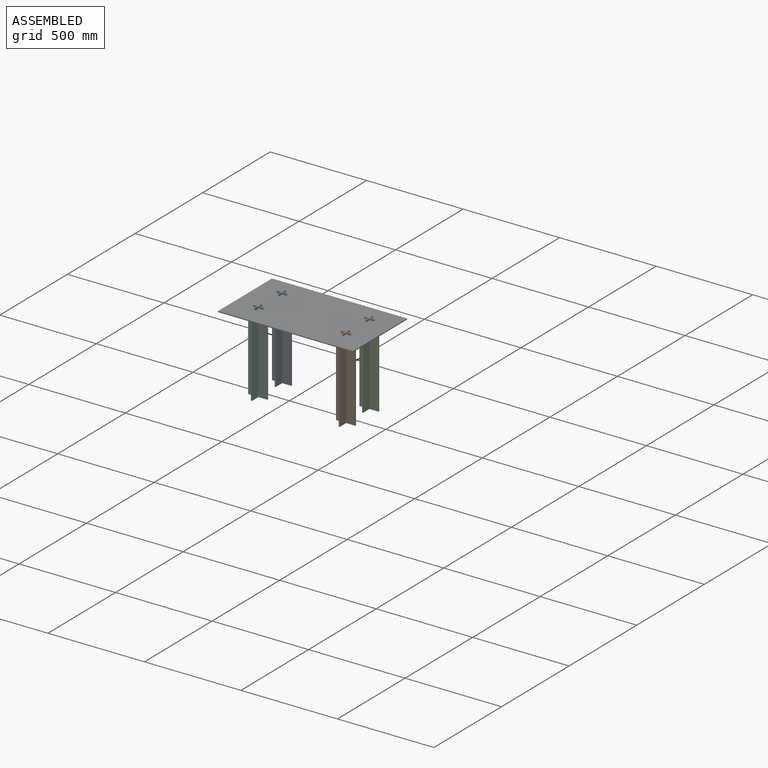
[diagram: assembled view]
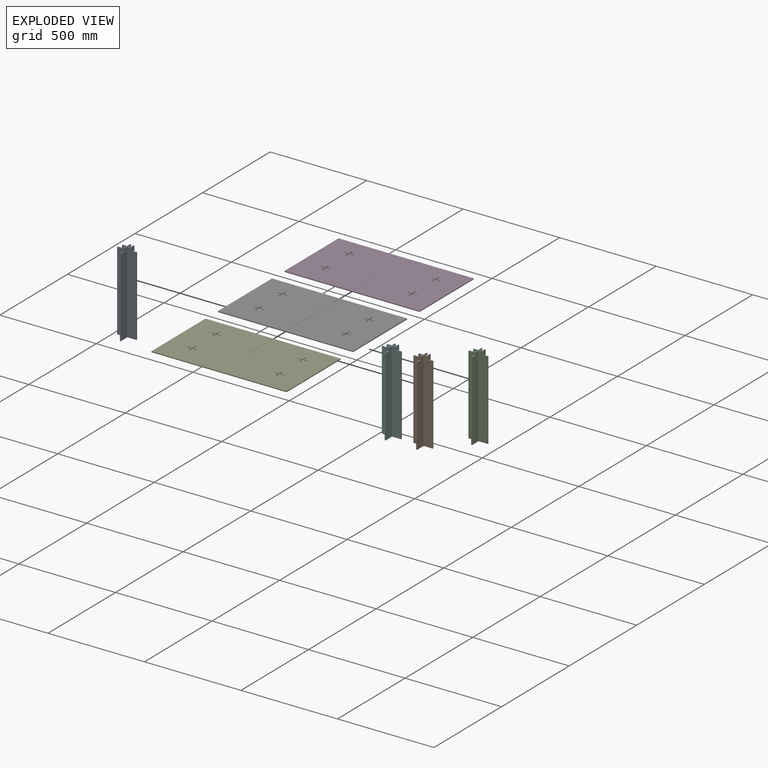
[diagram: exploded view]
GUIDED TOUR — MATED ASSEMBLY WITH SUBASSEMBLIES (Onshape document 4f906f8c0d8d849d14eea6be, AutoMate assembly 4f906f8c0d8d849d14eea6be_8393cce24d289e3eb619da18_ee5d5267eabd200aae0d3cd7_default)

This assembly has 11 component occurrences arranged in 7 top-level units: 3 individual components plus 4 subassemblies (S0, S1, S2, S3). The tour has two levels: first the top level, where each subassembly is treated as one rigid unit; then each subassembly is toured internally in its own section (nesting deeper than one subassembly level is flattened into its subassembly's section).

Components are labeled P0..P10 across the whole record; subassembly units are labeled S0..S3. A mate is a constraint between two units; its type names the relative motion it leaves free:
  FASTENED — locks the two components together rigidly (no relative motion),
  SLIDER — leaves translation along the listed axis free.
Axis/direction vectors are unit vectors and 'through' points are millimeter coordinates, both in the assembly's world frame.

TOP-LEVEL MATES (between units; each subassembly's internal mates are listed in its own section)
  1. SLIDER "Slider 1": S3 <-> P5, axis (0.000, 0.000, 1.000) through (-558.69, -146.63, 195.63) mm
  2. SLIDER "Slider 3": S2 <-> P5, axis (0.000, 0.000, 1.000) through (-103.69, 25.87, 195.63) mm
  3. SLIDER "Slider 2": S0 <-> P5, axis (0.000, 0.000, 1.000) through (-558.69, 25.87, 195.63) mm
  4. SLIDER "Slider 4": S1 <-> P5, axis (0.000, 0.000, 1.000) through (-103.69, -146.63, 195.63) mm

TOP-LEVEL ASSEMBLY ORDER
  1. P10 — the base component [order verified]
  2. P5 [order verified]
  3. P3 [order verified]
  4. S3 [order verified]
  5. S1 [order verified]
  6. S2 [order verified]
  7. S0 [order verified]
Order-tag legend:
  [order verified] — this step's position reverses a verified removal order: the component was checked to insert without passing through the ones already placed.

Of the 11 component occurrences, 11 carry the full construction recipe — the FeatureScript program that regenerates the part's solid from scratch; the rest are supplied as boundary geometry only. Each toured unit is shown spotlighted twice — assembled, then exploded with a leader line back to its socket (green = recipe-attached component, orange = geometry-only, blue = subassembly unit; the rest desaturated gray).
NOTE — this tour is split across 2 documents so each fits a 32k-token context. This is document 1: the component sections continue in the remaining 1 document, each repeating the header above.
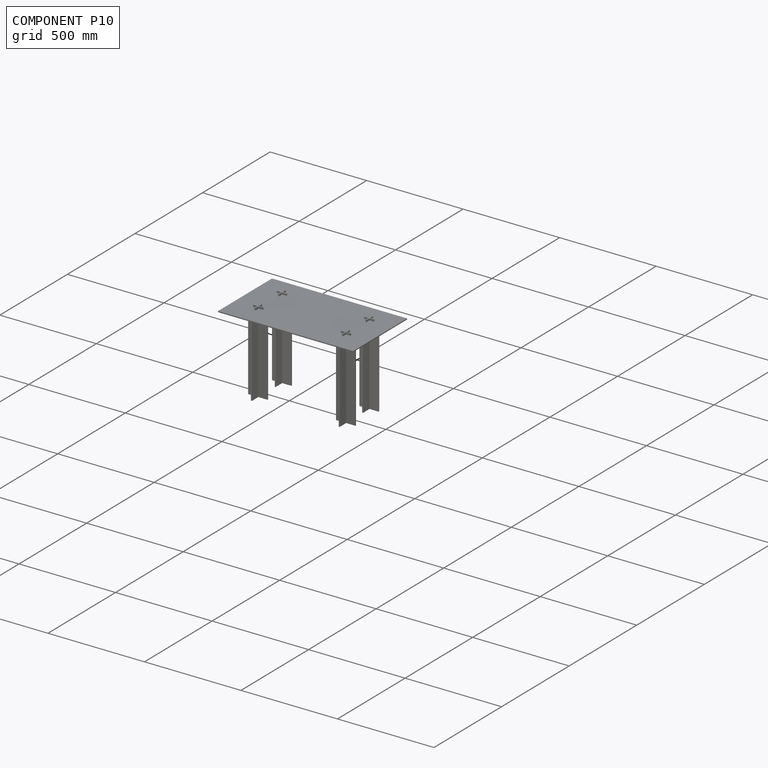
[diagram: component P10 — assembled]
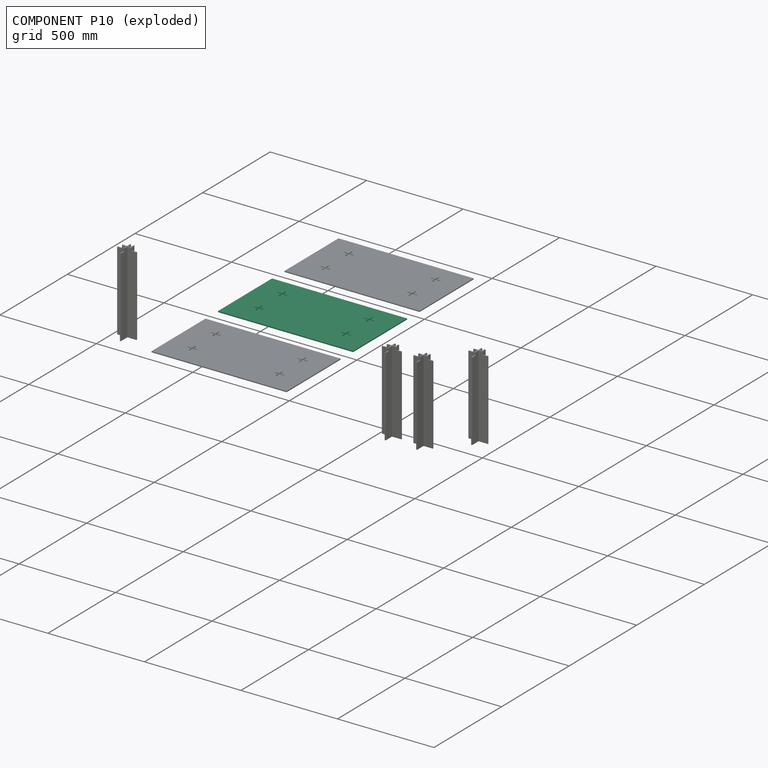
[diagram: component P10 — exploded]
COMPONENT P10 — same part as P3 (CADFS 00645659); its construction recipe is shown at P3.
Held by: no mates (free).
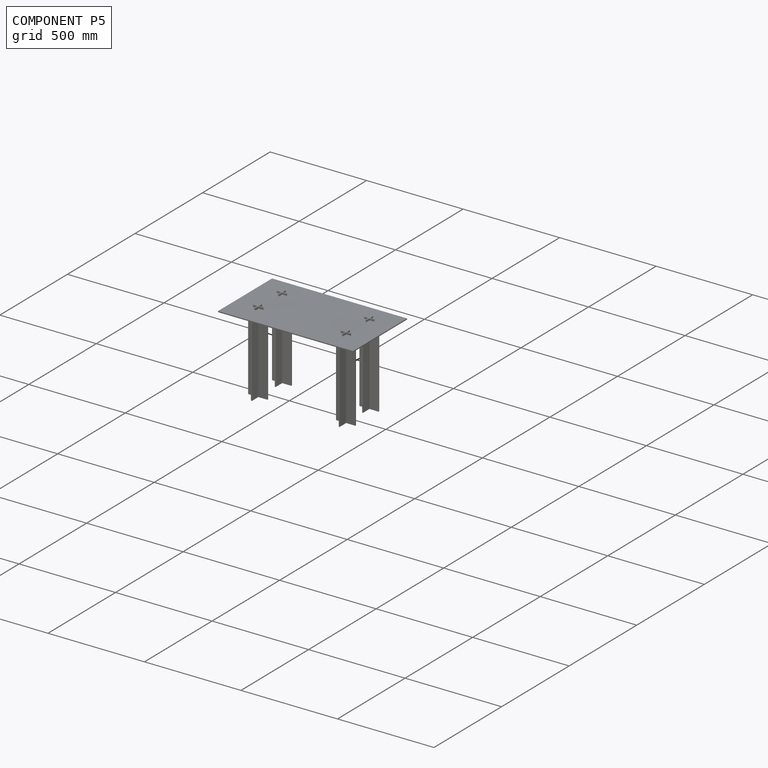
[diagram: component P5 — assembled]
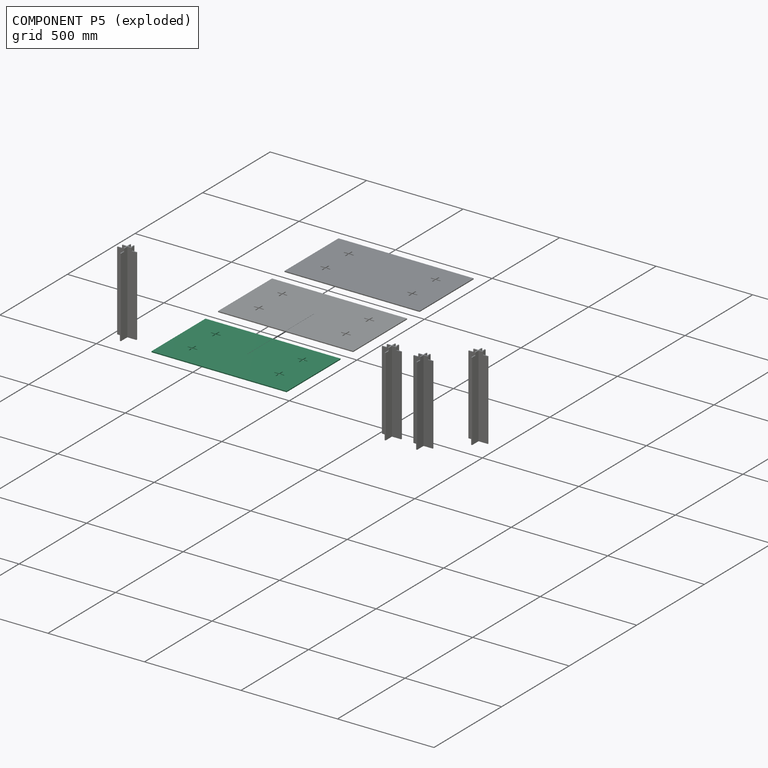
[diagram: component P5 — exploded]
COMPONENT P5 — same part as P3 (CADFS 00645659); its construction recipe is shown at P3.
Held by: SLIDER mate "Slider 1" to P7; SLIDER mate "Slider 3" to P2; SLIDER mate "Slider 2" to P0; SLIDER mate "Slider 4" to P1.
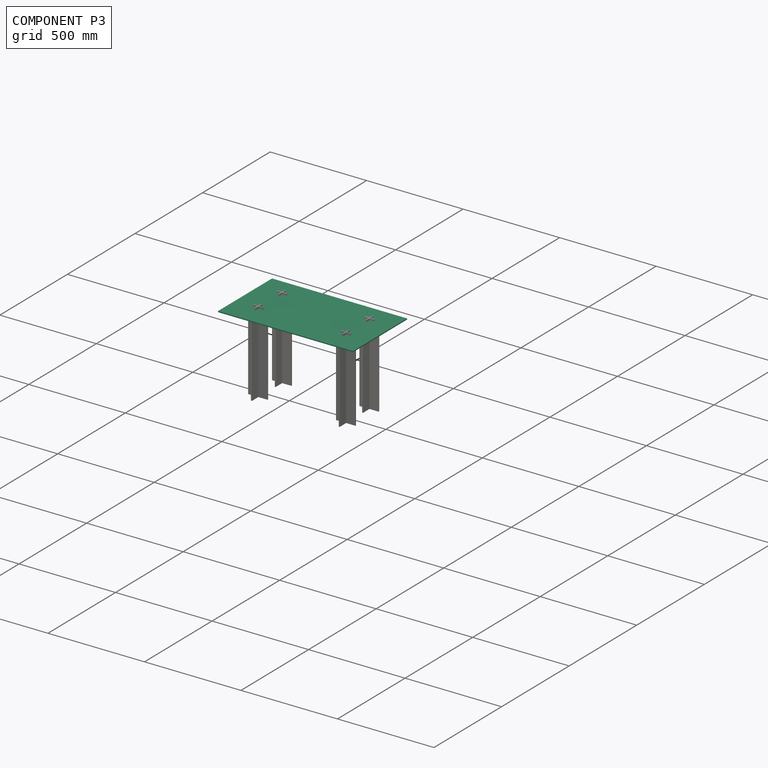
[diagram: component P3 — assembled]
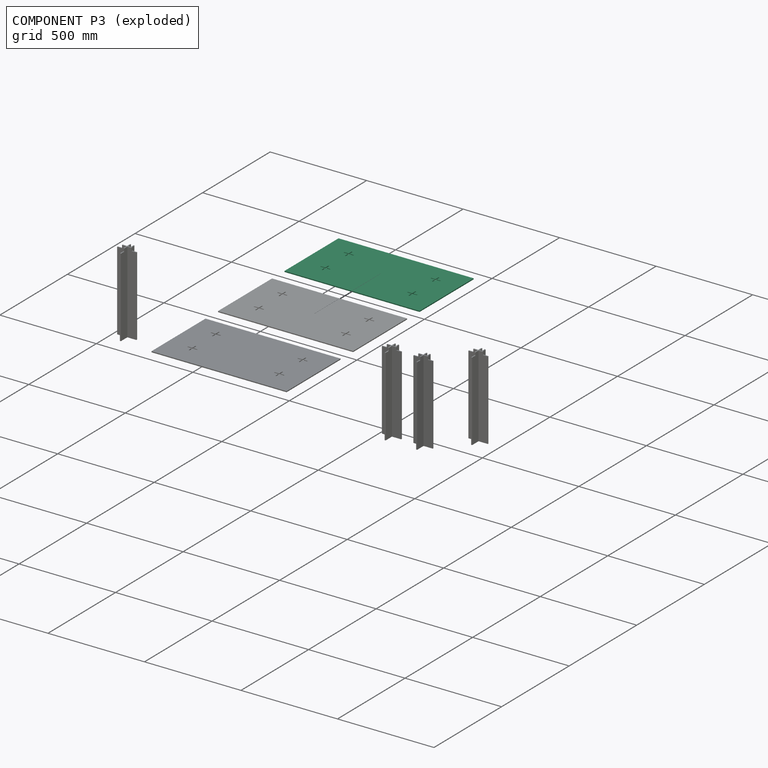
[diagram: component P3 — exploded]
COMPONENT P3 — recipe-attached (CADFS 00645659, mesh-verified: the recipe's output STEP matches this component's geometry to below the mesh-comparison resolution (tessellation chordal tolerance ~1.21 mm)).
Held by: no mates (free).
Construction recipe (FeatureScript — the CAD program that rebuilds this solid; sketch coordinates are in the units given by the * unit suffixes, e.g. mm):

FeatureScript 1511;
import(path : "onshape/std/geometry.fs", version : "1511.0");
import(path : "onshape/std/common.fs", version : "1511.0");
const mm = millimeter;
const VERTEX = EntityType.VERTEX;
const EDGE = EntityType.EDGE;
const FACE = EntityType.FACE;
const BODY = EntityType.BODY;
function v(x, y){return vector(x, y);}
function OD(order){return orderDisambiguation(order);}
function OSD(set){return originalSetDisambiguation(set);}
function TD(topology){return topologyDisambiguation(topology);}
function TDD(query){return trueDependencyDisambiguation(query);}
function sQuery(a, b, c) {return sketchEntityQuery(a, b, c);}

annotation { "Feature Type Name" : "Feature", "Feature Type Description" : "" }
export const myFeature = defineFeature(function(context is Context, id is Id, definition is map)
    precondition{}
    {
        {
            var Q0;
            Q0=qCreatedBy(makeId("Top.planeOp"),FACE);
            var sketch = newSketch(context, id + "F0", { "sketchPlane" : qUnion([Q0])});
            skLineSegment(sketch, "E0.bottom", {"start": v(-700, 0) * mm, "end": v(0, 0) * mm});
            skLineSegment(sketch, "E0.top", {"start": v(-700, 400) * mm, "end": v(0, 400) * mm});
            skLineSegment(sketch, "E0.left", {"start": v(-700, 0) * mm, "end": v(-700, 400) * mm});
            skLineSegment(sketch, "E0.right", {"start": v(0, 0) * mm, "end": v(0, 400) * mm});
            skLineSegment(sketch, "E1", {"start": v(-600, 300) * mm, "end": v(-577.5, 300) * mm});
            skLineSegment(sketch, "E2", {"start": v(-577.5, 322.5) * mm, "end": v(-577.5, 300) * mm});
            skLineSegment(sketch, "E3", {"start": v(-577.5, 322.5) * mm, "end": v(-572.5, 322.5) * mm});
            skLineSegment(sketch, "E4", {"start": v(-572.5, 322.5) * mm, "end": v(-572.5, 300) * mm});
            skLineSegment(sketch, "E5", {"start": v(-572.5, 272.5) * mm, "end": v(-577.5, 272.5) * mm});
            skLineSegment(sketch, "E6", {"start": v(-600, 300) * mm, "end": v(-600, 295) * mm});
            skLineSegment(sketch, "E7", {"start": v(-600, 295) * mm, "end": v(-577.5, 295) * mm});
            skLineSegment(sketch, "E8", {"start": v(-550, 295) * mm, "end": v(-550, 300) * mm});
            skLineSegment(sketch, "E9.trimOffspring", {"start": v(-577.5, 295) * mm, "end": v(-577.5, 272.5) * mm});
            skLineSegment(sketch, "E10.trimOffspring", {"start": v(-572.5, 300) * mm, "end": v(-550, 300) * mm});
            skLineSegment(sketch, "E11.trimOffspring", {"start": v(-572.5, 295) * mm, "end": v(-572.5, 272.5) * mm});
            skLineSegment(sketch, "E12.trimOffspring", {"start": v(-572.5, 295) * mm, "end": v(-550, 295) * mm});
            skLineSegment(sketch, "E13", {"start": v(-600, 127.5) * mm, "end": v(-577.5, 127.5) * mm});
            skLineSegment(sketch, "E14", {"start": v(-577.5, 150) * mm, "end": v(-577.5, 127.5) * mm});
            skLineSegment(sketch, "E15", {"start": v(-577.5, 150) * mm, "end": v(-572.5, 150) * mm});
            skLineSegment(sketch, "E16", {"start": v(-572.5, 150) * mm, "end": v(-572.5, 127.5) * mm});
            skLineSegment(sketch, "E17", {"start": v(-572.5, 100) * mm, "end": v(-577.5, 100) * mm});
            skLineSegment(sketch, "E18", {"start": v(-600, 127.5) * mm, "end": v(-600, 122.5) * mm});
            skLineSegment(sketch, "E19", {"start": v(-600, 122.5) * mm, "end": v(-577.5, 122.5) * mm});
            skLineSegment(sketch, "E20", {"start": v(-550, 122.5) * mm, "end": v(-550, 127.5) * mm});
            skLineSegment(sketch, "E21.trimOffspring", {"start": v(-577.5, 122.5) * mm, "end": v(-577.5, 100) * mm});
            skLineSegment(sketch, "E22.trimOffspring", {"start": v(-572.5, 127.5) * mm, "end": v(-550, 127.5) * mm});
            skLineSegment(sketch, "E23.trimOffspring", {"start": v(-572.5, 122.5) * mm, "end": v(-572.5, 100) * mm});
            skLineSegment(sketch, "E24.trimOffspring", {"start": v(-572.5, 122.5) * mm, "end": v(-550, 122.5) * mm});
            skLineSegment(sketch, "E25", {"start": v(-150, 300) * mm, "end": v(-127.5, 300) * mm});
            skLineSegment(sketch, "E26", {"start": v(-127.5, 322.5) * mm, "end": v(-127.5, 300) * mm});
            skLineSegment(sketch, "E27", {"start": v(-127.5, 322.5) * mm, "end": v(-122.5, 322.5) * mm});
            skLineSegment(sketch, "E28", {"start": v(-122.5, 322.5) * mm, "end": v(-122.5, 300) * mm});
            skLineSegment(sketch, "E29", {"start": v(-122.5, 272.5) * mm, "end": v(-127.5, 272.5) * mm});
            skLineSegment(sketch, "E30", {"start": v(-150, 300) * mm, "end": v(-150, 295) * mm});
            skLineSegment(sketch, "E31", {"start": v(-150, 295) * mm, "end": v(-127.5, 295) * mm});
            skLineSegment(sketch, "E32", {"start": v(-100, 295) * mm, "end": v(-100, 300) * mm});
            skLineSegment(sketch, "E33.trimOffspring", {"start": v(-127.5, 295) * mm, "end": v(-127.5, 272.5) * mm});
            skLineSegment(sketch, "E34.trimOffspring", {"start": v(-122.5, 300) * mm, "end": v(-100, 300) * mm});
            skLineSegment(sketch, "E35.trimOffspring", {"start": v(-122.5, 295) * mm, "end": v(-122.5, 272.5) * mm});
            skLineSegment(sketch, "E36.trimOffspring", {"start": v(-122.5, 295) * mm, "end": v(-100, 295) * mm});
            skLineSegment(sketch, "E37", {"start": v(-150, 127.5) * mm, "end": v(-127.5, 127.5) * mm});
            skLineSegment(sketch, "E38", {"start": v(-127.5, 150) * mm, "end": v(-127.5, 127.5) * mm});
            skLineSegment(sketch, "E39", {"start": v(-127.5, 150) * mm, "end": v(-122.5, 150) * mm});
            skLineSegment(sketch, "E40", {"start": v(-122.5, 150) * mm, "end": v(-122.5, 127.5) * mm});
            skLineSegment(sketch, "E41", {"start": v(-122.5, 100) * mm, "end": v(-127.5, 100) * mm});
            skLineSegment(sketch, "E42", {"start": v(-150, 127.5) * mm, "end": v(-150, 122.5) * mm});
            skLineSegment(sketch, "E43", {"start": v(-150, 122.5) * mm, "end": v(-127.5, 122.5) * mm});
            skLineSegment(sketch, "E44", {"start": v(-100, 122.5) * mm, "end": v(-100, 127.5) * mm});
            skLineSegment(sketch, "E45.trimOffspring", {"start": v(-127.5, 122.5) * mm, "end": v(-127.5, 100) * mm});
            skLineSegment(sketch, "E46.trimOffspring", {"start": v(-122.5, 127.5) * mm, "end": v(-100, 127.5) * mm});
            skLineSegment(sketch, "E47.trimOffspring", {"start": v(-122.5, 122.5) * mm, "end": v(-122.5, 100) * mm});
            skLineSegment(sketch, "E48.trimOffspring", {"start": v(-122.5, 122.5) * mm, "end": v(-100, 122.5) * mm});
            skSolve(sketch);
        }
        {
            var Q0;
            Q0=makeQuery(id+"F0.imprint","IMPRINT",FACE,{"disambiguationData":[TD([[makeQuery(id+"F0.imprint","IMPRINT",EDGE,{"derivedFrom":sQuery(id+"F0.wireOp",EDGE,"E0.bottom")}),1.0]])]});
            extrude(context, id + "F1", {"entities" : qUnion([Q0]), "depth" : 5 * mm, "offsetDistance" : 25 * mm});
        }
    });
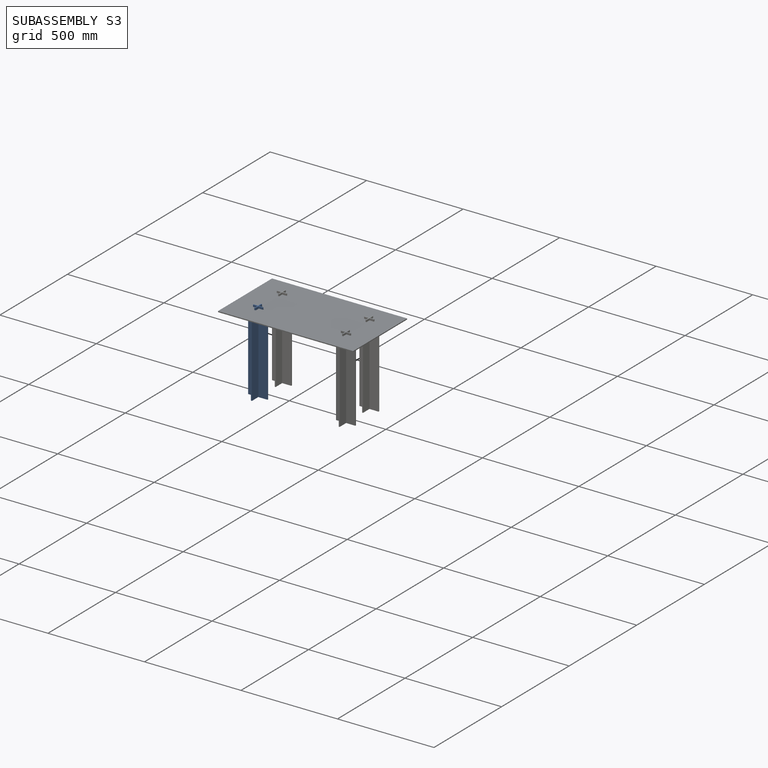
[diagram: subassembly S3 — assembled]
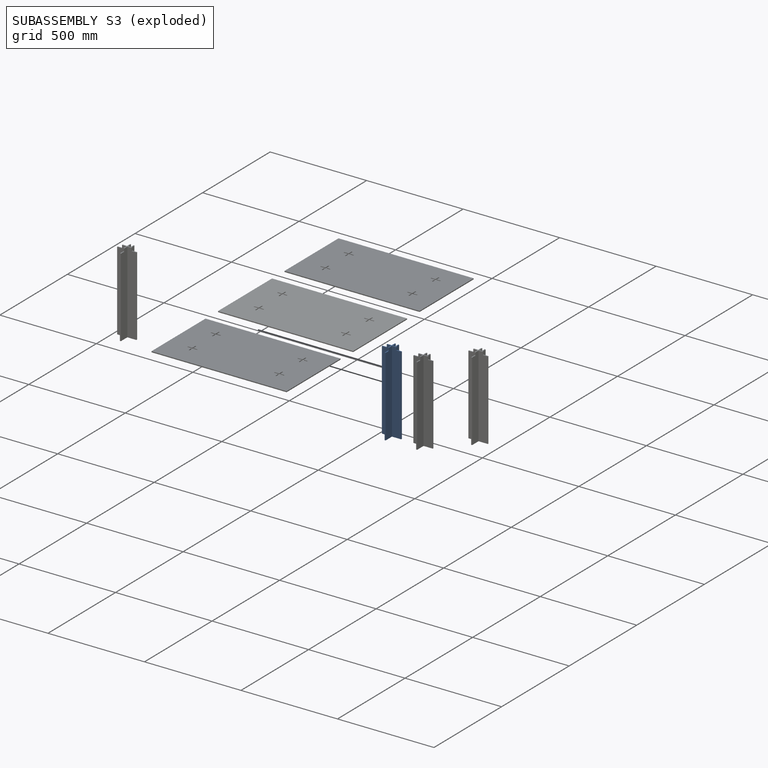
[diagram: subassembly S3 — exploded]
SUBASSEMBLY S3 — 2 components (P7, P8), of which 2 recipe-attached; toured below.
Held by: SLIDER mate "Slider 1" to P5.
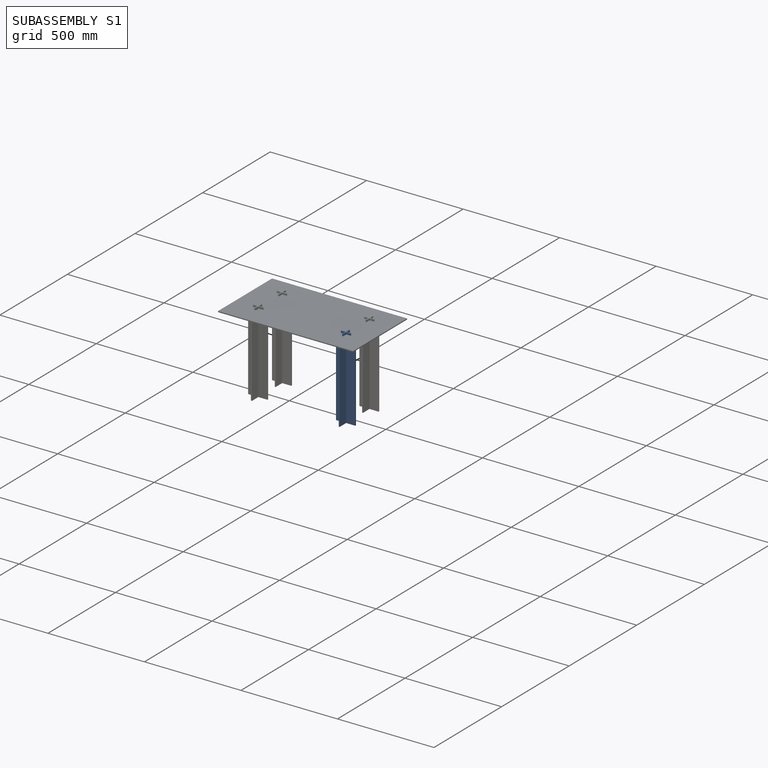
[diagram: subassembly S1 — assembled]
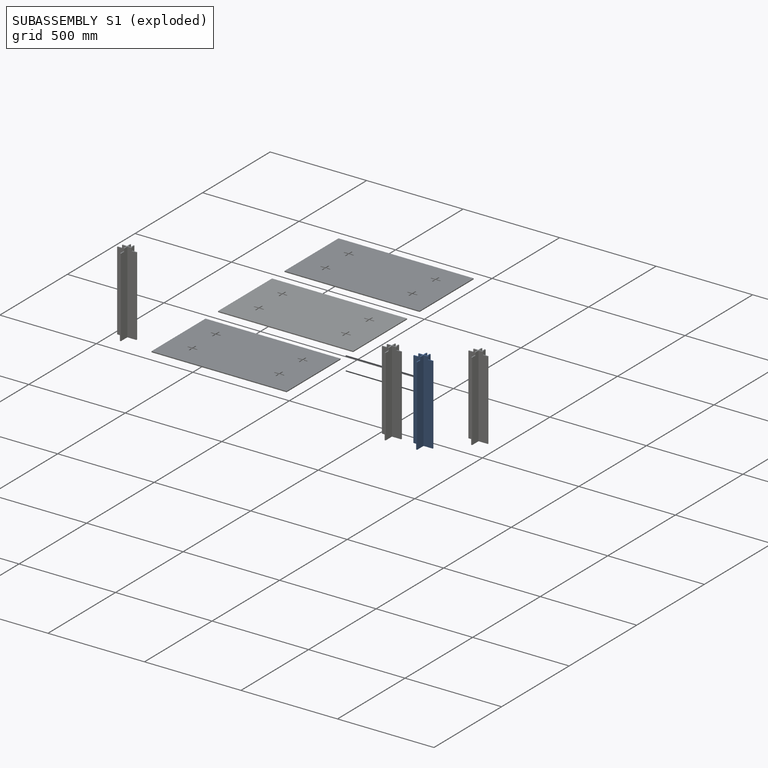
[diagram: subassembly S1 — exploded]
SUBASSEMBLY S1 — 2 components (P1, P9), of which 2 recipe-attached; toured below.
Held by: SLIDER mate "Slider 4" to P5.
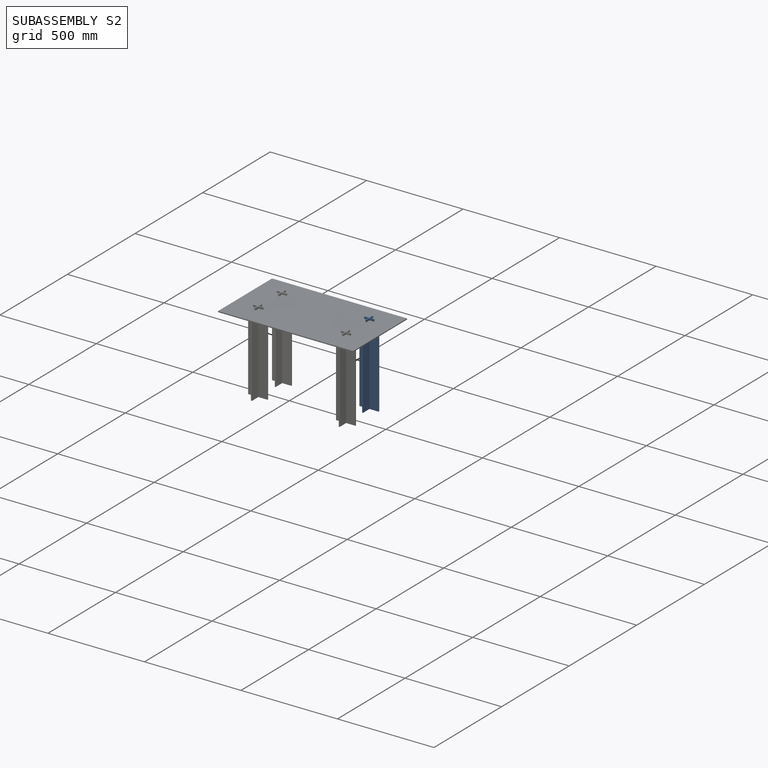
[diagram: subassembly S2 — assembled]
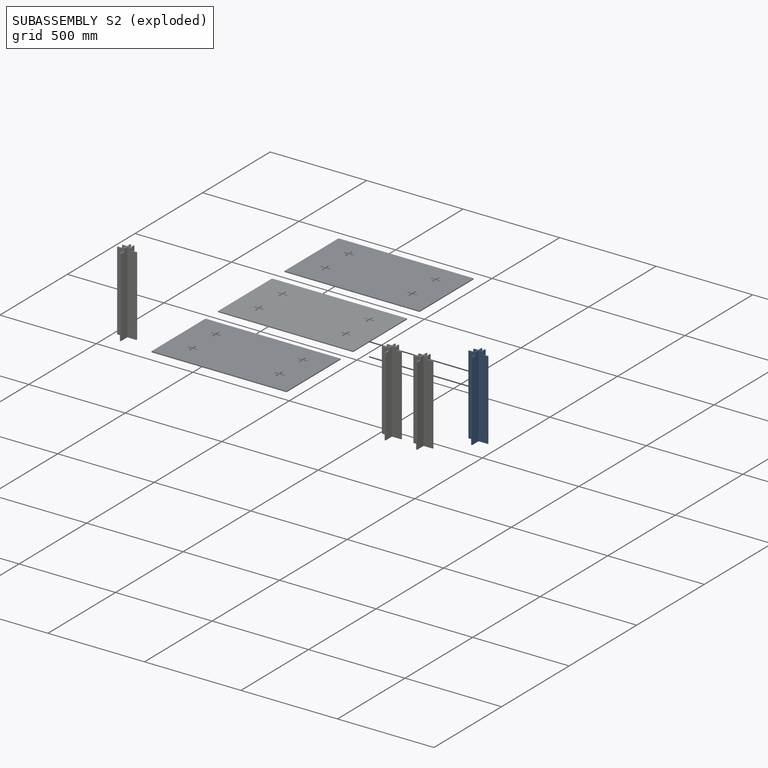
[diagram: subassembly S2 — exploded]
SUBASSEMBLY S2 — 2 components (P2, P4), of which 2 recipe-attached; toured below.
Held by: SLIDER mate "Slider 3" to P5.
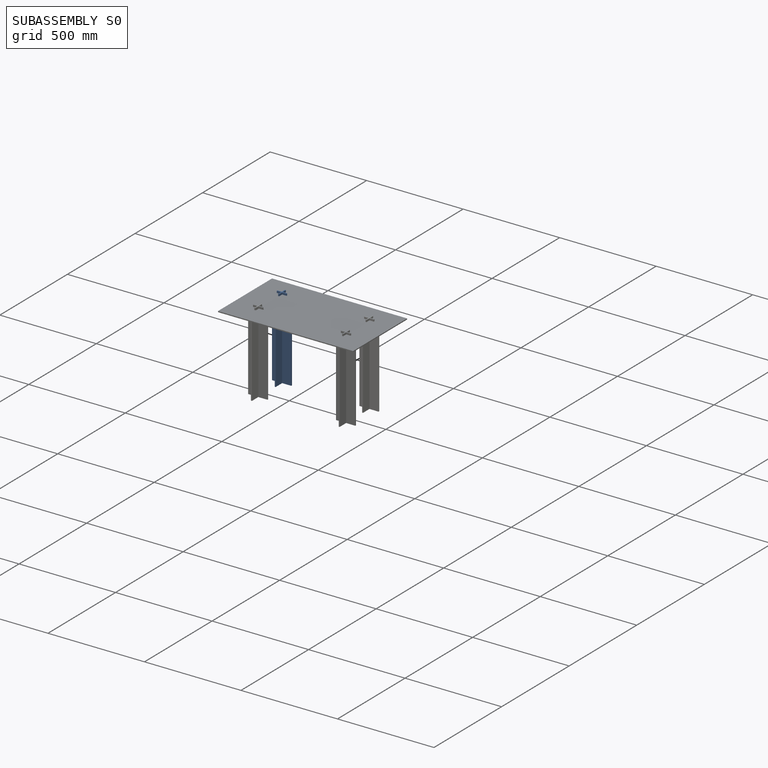
[diagram: subassembly S0 — assembled]
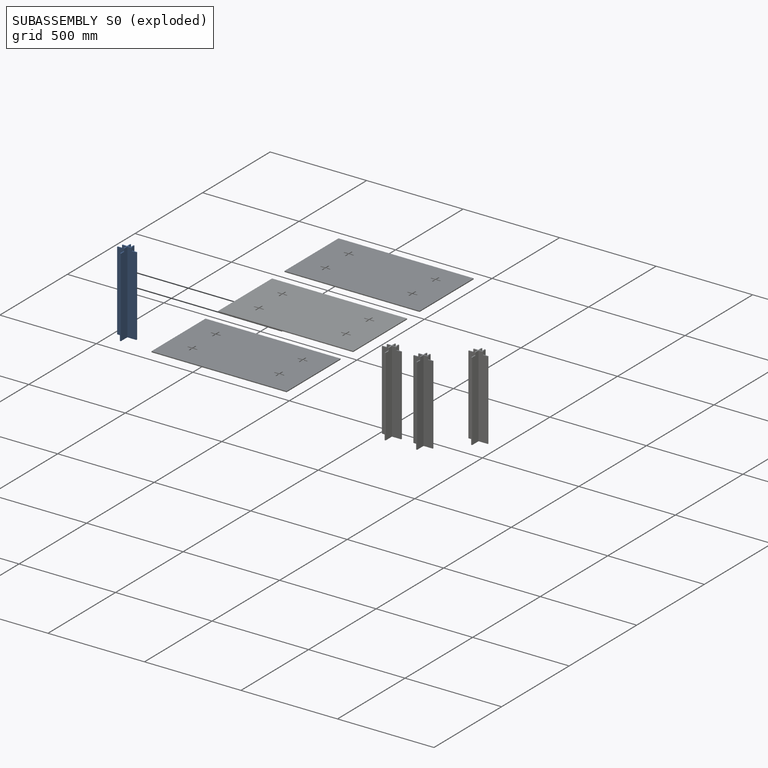
[diagram: subassembly S0 — exploded]
SUBASSEMBLY S0 — 2 components (P0, P6), of which 2 recipe-attached; toured below.
Held by: SLIDER mate "Slider 2" to P5.
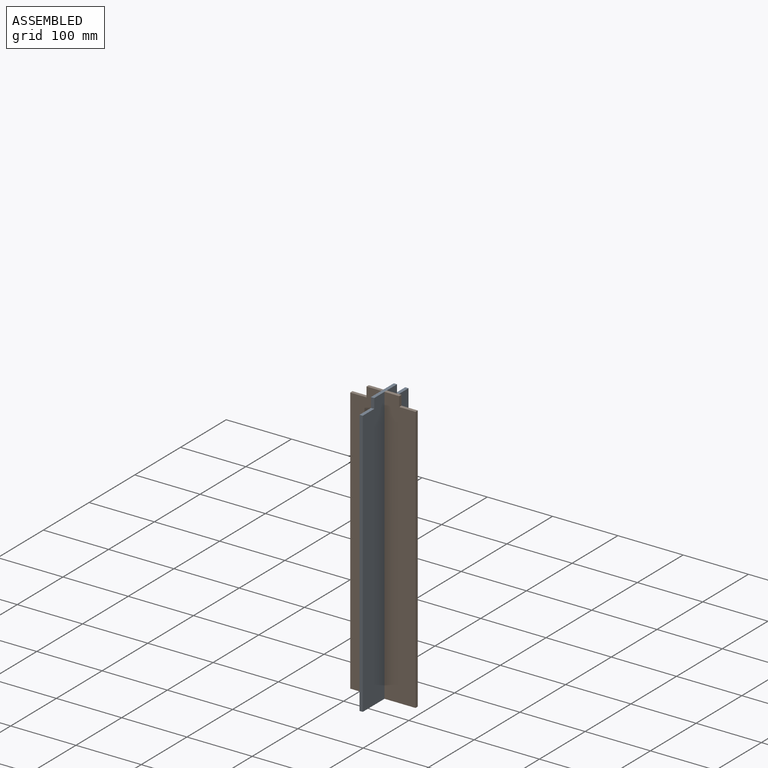
[diagram: subassembly S0 — assembled view]
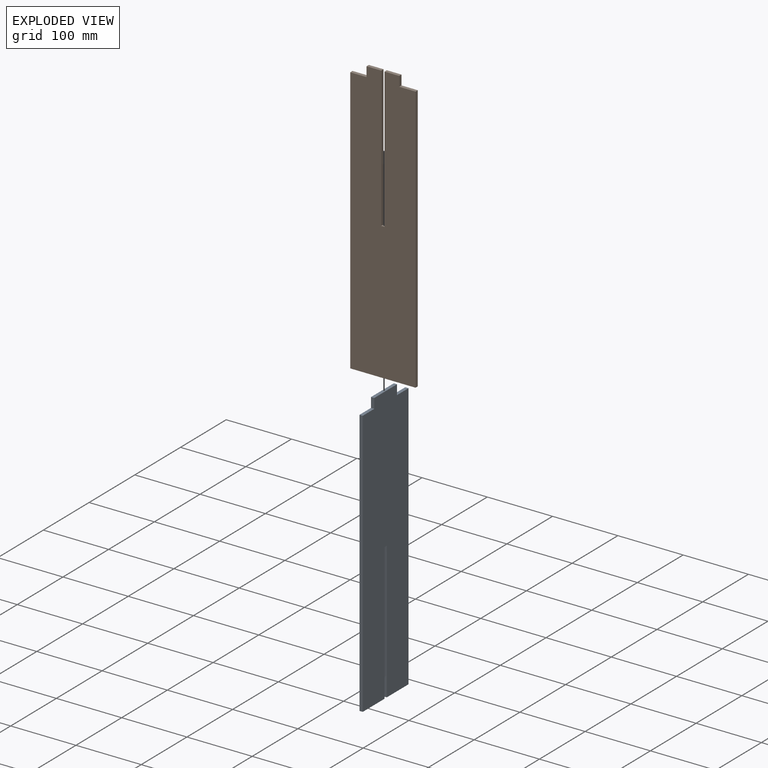
[diagram: subassembly S0 — exploded view]
SUBASSEMBLY S0 TOUR — 2 components, shown here in isolation at its own camera.

INTERNAL MATES
  1. FASTENED "Fastened 1": P6 <-> P0, direction (0.000, 0.000, 1.000) through (-556.19, 25.87, -19.37) mm
  2. FASTENED "Fastened 1": P6 <-> P0, direction (0.000, 0.000, 1.000) through (-556.19, 25.87, -19.37) mm

ASSEMBLY ORDER (within the subassembly)
  1. P0 — the base component [order heuristic]
  2. P6 [order heuristic]
Order-tag legend:
  [order heuristic] — this assembly is geometrically interlocked (no collision-free removal order exists), so components are listed in mate-graph order; insertion feasibility is not verified.
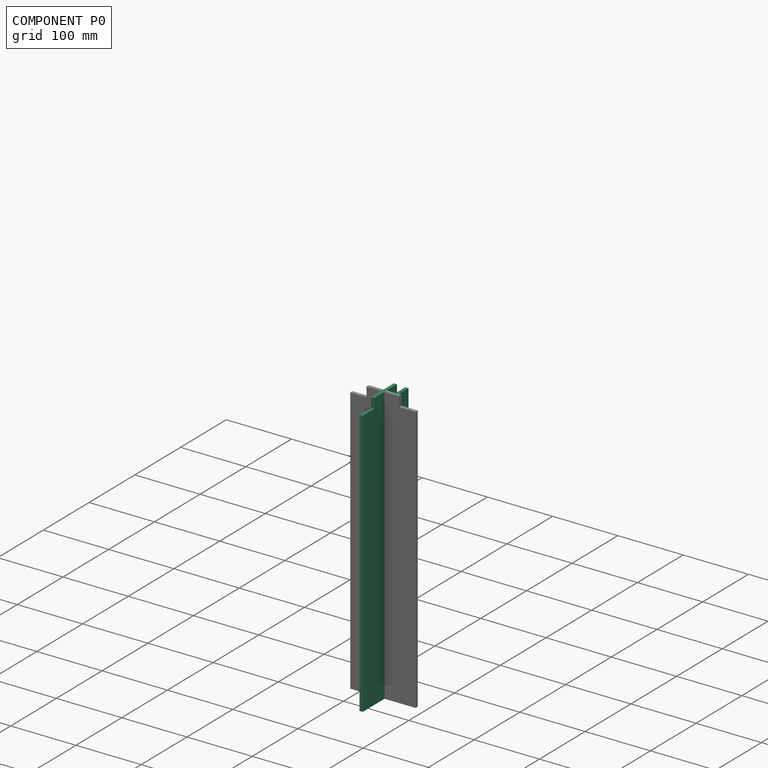
[diagram: component P0 — assembled]
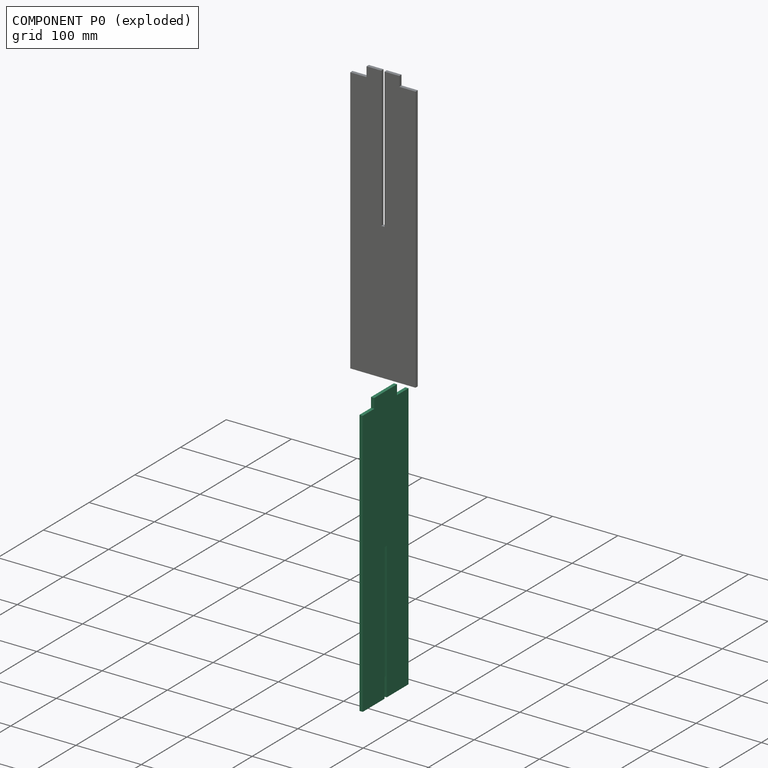
[diagram: component P0 — exploded]
COMPONENT P0 — recipe-attached (CADFS 00645660, mesh-verified: the recipe's output STEP matches this component's geometry to below the mesh-comparison resolution (tessellation chordal tolerance ~0.655 mm)).
Held by: FASTENED mate "Fastened 1" to P6; FASTENED mate "Fastened 1" to P6.
Construction recipe (FeatureScript — the CAD program that rebuilds this solid; sketch coordinates are in the units given by the * unit suffixes, e.g. mm):

FeatureScript 1511;
import(path : "onshape/std/geometry.fs", version : "1511.0");
import(path : "onshape/std/common.fs", version : "1511.0");
const mm = millimeter;
const VERTEX = EntityType.VERTEX;
const EDGE = EntityType.EDGE;
const FACE = EntityType.FACE;
const BODY = EntityType.BODY;
function v(x, y){return vector(x, y);}
function OD(order){return orderDisambiguation(order);}
function OSD(set){return originalSetDisambiguation(set);}
function TD(topology){return topologyDisambiguation(topology);}
function TDD(query){return trueDependencyDisambiguation(query);}
function sQuery(a, b, c) {return sketchEntityQuery(a, b, c);}

annotation { "Feature Type Name" : "Feature", "Feature Type Description" : "" }
export const myFeature = defineFeature(function(context is Context, id is Id, definition is map)
    precondition{}
    {
        {
            var Q0;
            Q0=qCreatedBy(makeId("Right.planeOp"),FACE);
            var sketch = newSketch(context, id + "F0", { "sketchPlane" : qUnion([Q0])});
            skLineSegment(sketch, "E0.top", {"start": v(0, 410) * mm, "end": v(-25, 410) * mm});
            skLineSegment(sketch, "E0.left", {"start": v(0, 0) * mm, "end": v(0, 410) * mm});
            skLineSegment(sketch, "E0.right", {"start": v(-100, 0) * mm, "end": v(-100, 410) * mm});
            skLineSegment(sketch, "E1.top", {"start": v(-75, 425) * mm, "end": v(-25, 425) * mm});
            skLineSegment(sketch, "E1.left", {"start": v(-75, 410) * mm, "end": v(-75, 425) * mm});
            skLineSegment(sketch, "E1.right", {"start": v(-25, 410) * mm, "end": v(-25, 425) * mm});
            skLineSegment(sketch, "E2", {"start": v(-100, 0) * mm, "end": v(-52.5, 0) * mm});
            skLineSegment(sketch, "E3.trimOffspring", {"start": v(-75, 410) * mm, "end": v(-100, 410) * mm});
            skPoint(sketch, "E4.oppositeSnap0", {"position": v(-50, 0) * mm});
            skLineSegment(sketch, "E4.bottom", {"start": v(-50, 0) * mm, "end": v(-50, 0) * mm});
            skLineSegment(sketch, "E5.top", {"start": v(-52.5, 210) * mm, "end": v(-47.5, 210) * mm});
            skLineSegment(sketch, "E5.left", {"start": v(-52.5, 0) * mm, "end": v(-52.5, 210) * mm});
            skLineSegment(sketch, "E5.right", {"start": v(-47.5, 0) * mm, "end": v(-47.5, 210) * mm});
            skLineSegment(sketch, "E6.trimOffspring", {"start": v(-47.5, 0) * mm, "end": v(0, 0) * mm});
            skSolve(sketch);
        }
        {
            var Q0;
            Q0=makeQuery(id+"F0.imprint","IMPRINT",FACE,{"disambiguationData":[TD([[makeQuery(id+"F0.imprint","IMPRINT",EDGE,{"derivedFrom":sQuery(id+"F0.wireOp",EDGE,"E0.top")}),1.0]])]});
            extrude(context, id + "F1", {"entities" : qUnion([Q0]), "depth" : 5 * mm, "offsetDistance" : 25 * mm});
        }
    });
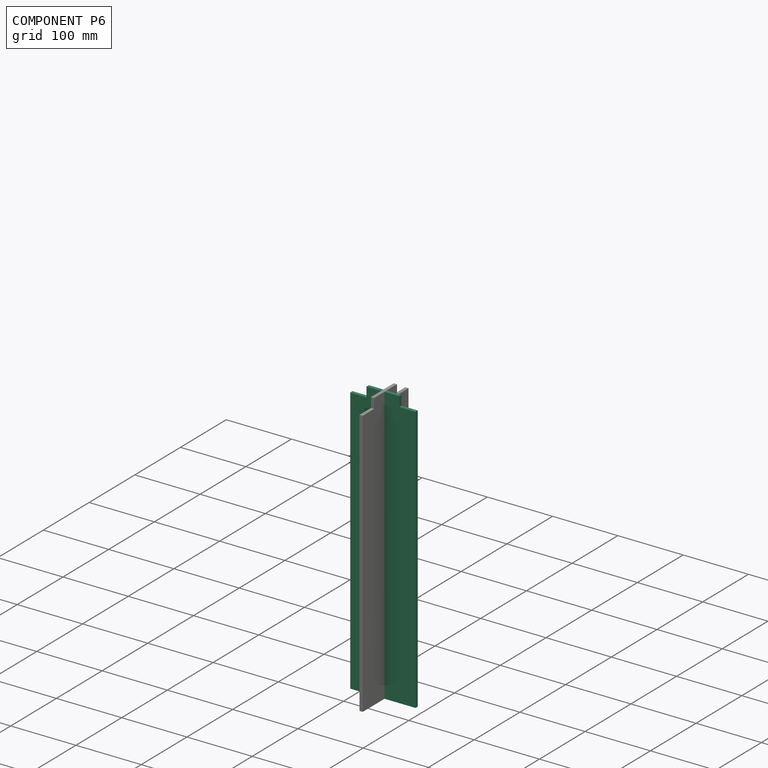
[diagram: component P6 — assembled]
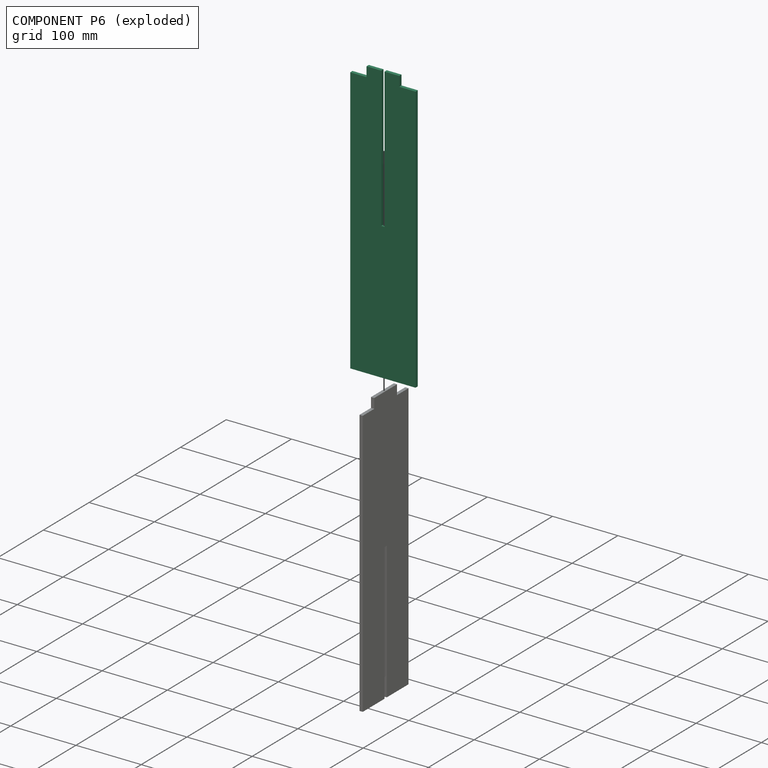
[diagram: component P6 — exploded]
COMPONENT P6 — recipe-attached (CADFS 00645660, mesh-verified: the recipe's output STEP matches this component's geometry to below the mesh-comparison resolution (tessellation chordal tolerance ~0.655 mm)).
Held by: FASTENED mate "Fastened 1" to P0; FASTENED mate "Fastened 1" to P0.
Construction recipe (FeatureScript — the CAD program that rebuilds this solid; sketch coordinates are in the units given by the * unit suffixes, e.g. mm):

FeatureScript 1511;
import(path : "onshape/std/geometry.fs", version : "1511.0");
import(path : "onshape/std/common.fs", version : "1511.0");
const mm = millimeter;
const VERTEX = EntityType.VERTEX;
const EDGE = EntityType.EDGE;
const FACE = EntityType.FACE;
const BODY = EntityType.BODY;
function v(x, y){return vector(x, y);}
function OD(order){return orderDisambiguation(order);}
function OSD(set){return originalSetDisambiguation(set);}
function TD(topology){return topologyDisambiguation(topology);}
function TDD(query){return trueDependencyDisambiguation(query);}
function sQuery(a, b, c) {return sketchEntityQuery(a, b, c);}

annotation { "Feature Type Name" : "Feature", "Feature Type Description" : "" }
export const myFeature = defineFeature(function(context is Context, id is Id, definition is map)
    precondition{}
    {
        {
            var Q0;
            Q0=qCreatedBy(makeId("Right.planeOp"),FACE);
            var sketch = newSketch(context, id + "F0", { "sketchPlane" : qUnion([Q0])});
            skLineSegment(sketch, "E0.top", {"start": v(0, 410) * mm, "end": v(-25, 410) * mm});
            skLineSegment(sketch, "E0.left", {"start": v(0, 0) * mm, "end": v(0, 410) * mm});
            skLineSegment(sketch, "E0.right", {"start": v(-100, 0) * mm, "end": v(-100, 410) * mm});
            skLineSegment(sketch, "E1.top", {"start": v(-75, 425) * mm, "end": v(-25, 425) * mm});
            skLineSegment(sketch, "E1.left", {"start": v(-75, 410) * mm, "end": v(-75, 425) * mm});
            skLineSegment(sketch, "E1.right", {"start": v(-25, 410) * mm, "end": v(-25, 425) * mm});
            skLineSegment(sketch, "E2", {"start": v(-100, 0) * mm, "end": v(-52.5, 0) * mm});
            skLineSegment(sketch, "E3.trimOffspring", {"start": v(-75, 410) * mm, "end": v(-100, 410) * mm});
            skPoint(sketch, "E4.oppositeSnap0", {"position": v(-50, 0) * mm});
            skLineSegment(sketch, "E4.bottom", {"start": v(-50, 0) * mm, "end": v(-50, 0) * mm});
            skLineSegment(sketch, "E5.top", {"start": v(-52.5, 210) * mm, "end": v(-47.5, 210) * mm});
            skLineSegment(sketch, "E5.left", {"start": v(-52.5, 0) * mm, "end": v(-52.5, 210) * mm});
            skLineSegment(sketch, "E5.right", {"start": v(-47.5, 0) * mm, "end": v(-47.5, 210) * mm});
            skLineSegment(sketch, "E6.trimOffspring", {"start": v(-47.5, 0) * mm, "end": v(0, 0) * mm});
            skSolve(sketch);
        }
        {
            var Q0;
            Q0=makeQuery(id+"F0.imprint","IMPRINT",FACE,{"disambiguationData":[TD([[makeQuery(id+"F0.imprint","IMPRINT",EDGE,{"derivedFrom":sQuery(id+"F0.wireOp",EDGE,"E0.top")}),1.0]])]});
            extrude(context, id + "F1", {"entities" : qUnion([Q0]), "depth" : 5 * mm, "offsetDistance" : 25 * mm});
        }
    });
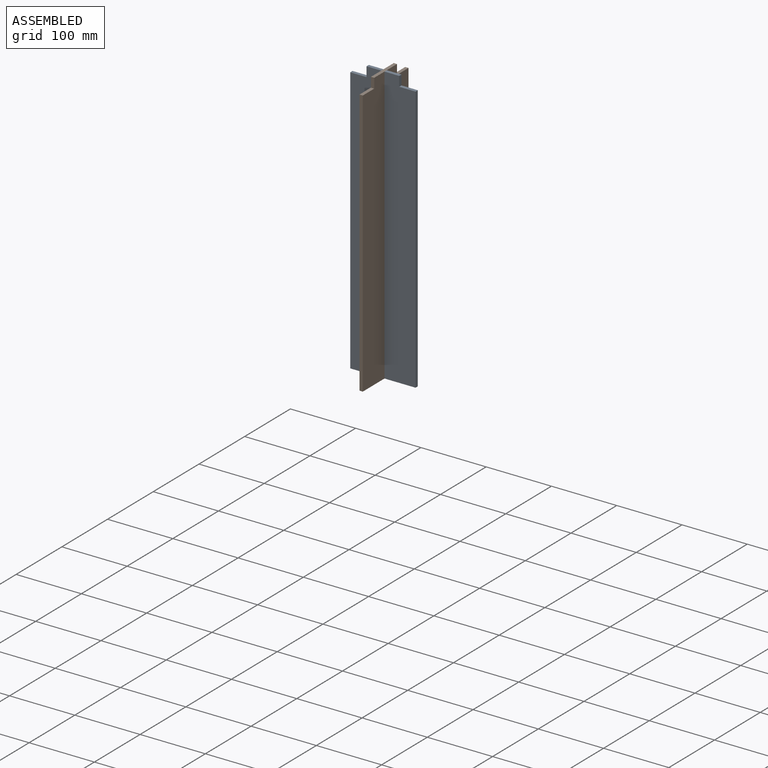
[diagram: subassembly S1 — assembled view]
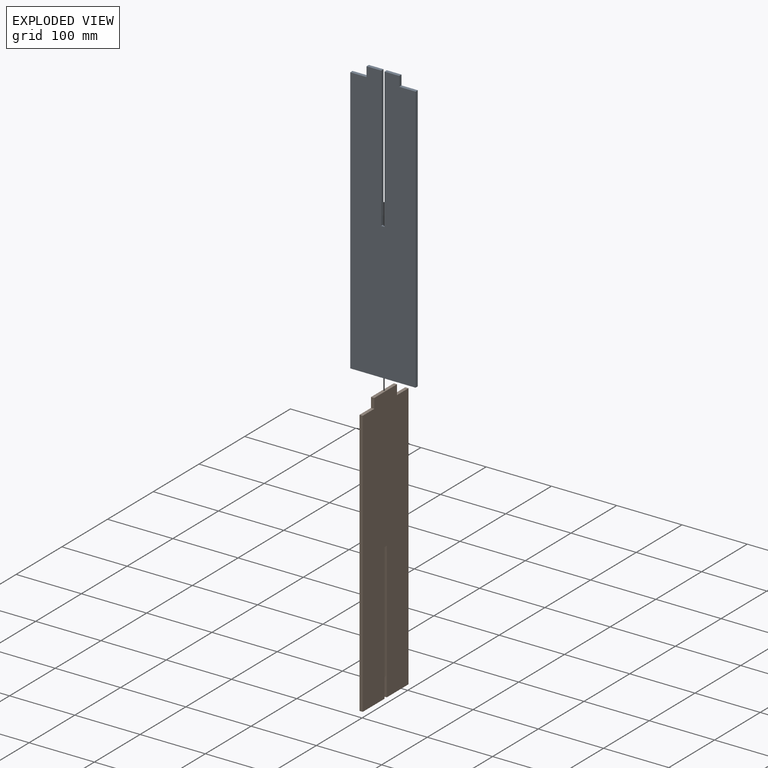
[diagram: subassembly S1 — exploded view]
SUBASSEMBLY S1 TOUR — 2 components, shown here in isolation at its own camera.

INTERNAL MATES
  1. FASTENED "Fastened 1": P1 <-> P9, direction (0.000, 0.000, 1.000) through (-103.69, -146.63, -19.37) mm
  2. FASTENED "Fastened 1": P1 <-> P9, direction (0.000, 0.000, 1.000) through (-103.69, -146.63, -19.37) mm

ASSEMBLY ORDER (within the subassembly)
  1. P1 — the base component [order heuristic]
  2. P9 [order heuristic]
Order-tag legend:
  [order heuristic] — this assembly is geometrically interlocked (no collision-free removal order exists), so components are listed in mate-graph order; insertion feasibility is not verified.
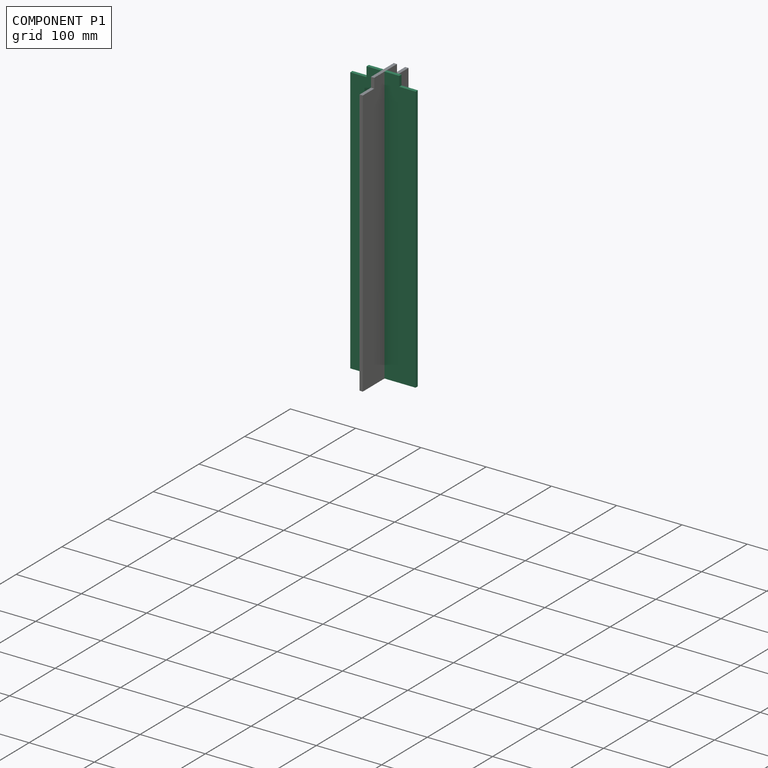
[diagram: component P1 — assembled]
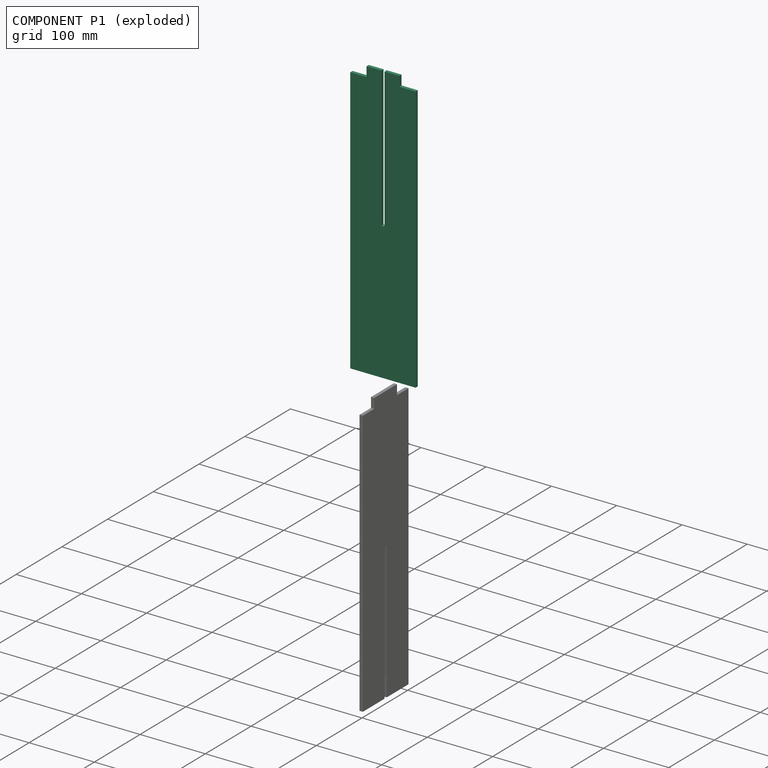
[diagram: component P1 — exploded]
COMPONENT P1 — recipe-attached (CADFS 00645660, mesh-verified: the recipe's output STEP matches this component's geometry to below the mesh-comparison resolution (tessellation chordal tolerance ~0.655 mm)).
Held by: FASTENED mate "Fastened 1" to P9; FASTENED mate "Fastened 1" to P9.
Construction recipe (FeatureScript — the CAD program that rebuilds this solid; sketch coordinates are in the units given by the * unit suffixes, e.g. mm):

FeatureScript 1511;
import(path : "onshape/std/geometry.fs", version : "1511.0");
import(path : "onshape/std/common.fs", version : "1511.0");
const mm = millimeter;
const VERTEX = EntityType.VERTEX;
const EDGE = EntityType.EDGE;
const FACE = EntityType.FACE;
const BODY = EntityType.BODY;
function v(x, y){return vector(x, y);}
function OD(order){return orderDisambiguation(order);}
function OSD(set){return originalSetDisambiguation(set);}
function TD(topology){return topologyDisambiguation(topology);}
function TDD(query){return trueDependencyDisambiguation(query);}
function sQuery(a, b, c) {return sketchEntityQuery(a, b, c);}

annotation { "Feature Type Name" : "Feature", "Feature Type Description" : "" }
export const myFeature = defineFeature(function(context is Context, id is Id, definition is map)
    precondition{}
    {
        {
            var Q0;
            Q0=qCreatedBy(makeId("Right.planeOp"),FACE);
            var sketch = newSketch(context, id + "F0", { "sketchPlane" : qUnion([Q0])});
            skLineSegment(sketch, "E0.top", {"start": v(0, 410) * mm, "end": v(-25, 410) * mm});
            skLineSegment(sketch, "E0.left", {"start": v(0, 0) * mm, "end": v(0, 410) * mm});
            skLineSegment(sketch, "E0.right", {"start": v(-100, 0) * mm, "end": v(-100, 410) * mm});
            skLineSegment(sketch, "E1.top", {"start": v(-75, 425) * mm, "end": v(-25, 425) * mm});
            skLineSegment(sketch, "E1.left", {"start": v(-75, 410) * mm, "end": v(-75, 425) * mm});
            skLineSegment(sketch, "E1.right", {"start": v(-25, 410) * mm, "end": v(-25, 425) * mm});
            skLineSegment(sketch, "E2", {"start": v(-100, 0) * mm, "end": v(-52.5, 0) * mm});
            skLineSegment(sketch, "E3.trimOffspring", {"start": v(-75, 410) * mm, "end": v(-100, 410) * mm});
            skPoint(sketch, "E4.oppositeSnap0", {"position": v(-50, 0) * mm});
            skLineSegment(sketch, "E4.bottom", {"start": v(-50, 0) * mm, "end": v(-50, 0) * mm});
            skLineSegment(sketch, "E5.top", {"start": v(-52.5, 210) * mm, "end": v(-47.5, 210) * mm});
            skLineSegment(sketch, "E5.left", {"start": v(-52.5, 0) * mm, "end": v(-52.5, 210) * mm});
            skLineSegment(sketch, "E5.right", {"start": v(-47.5, 0) * mm, "end": v(-47.5, 210) * mm});
            skLineSegment(sketch, "E6.trimOffspring", {"start": v(-47.5, 0) * mm, "end": v(0, 0) * mm});
            skSolve(sketch);
        }
        {
            var Q0;
            Q0=makeQuery(id+"F0.imprint","IMPRINT",FACE,{"disambiguationData":[TD([[makeQuery(id+"F0.imprint","IMPRINT",EDGE,{"derivedFrom":sQuery(id+"F0.wireOp",EDGE,"E0.top")}),1.0]])]});
            extrude(context, id + "F1", {"entities" : qUnion([Q0]), "depth" : 5 * mm, "offsetDistance" : 25 * mm});
        }
    });
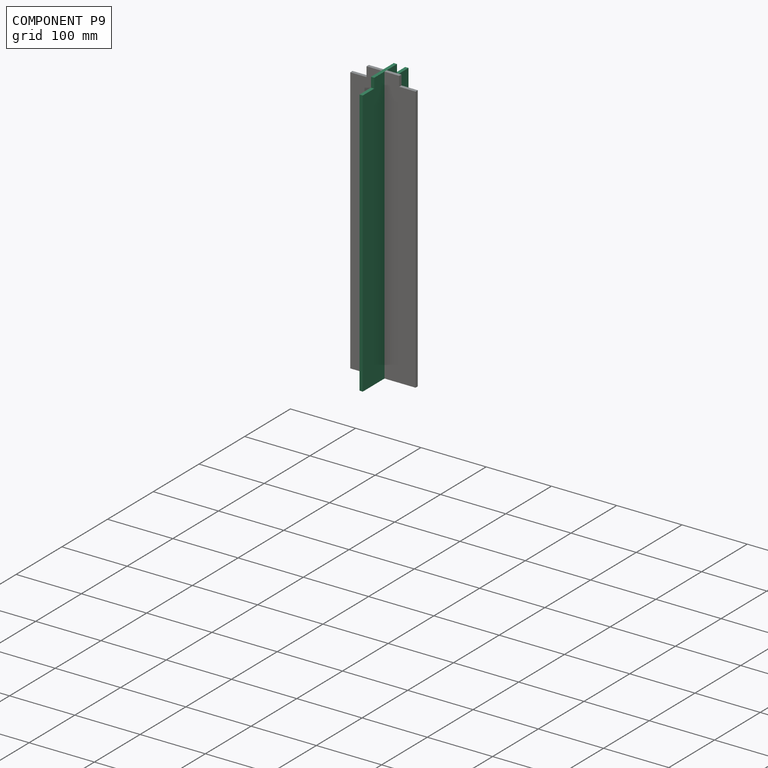
[diagram: component P9 — assembled]
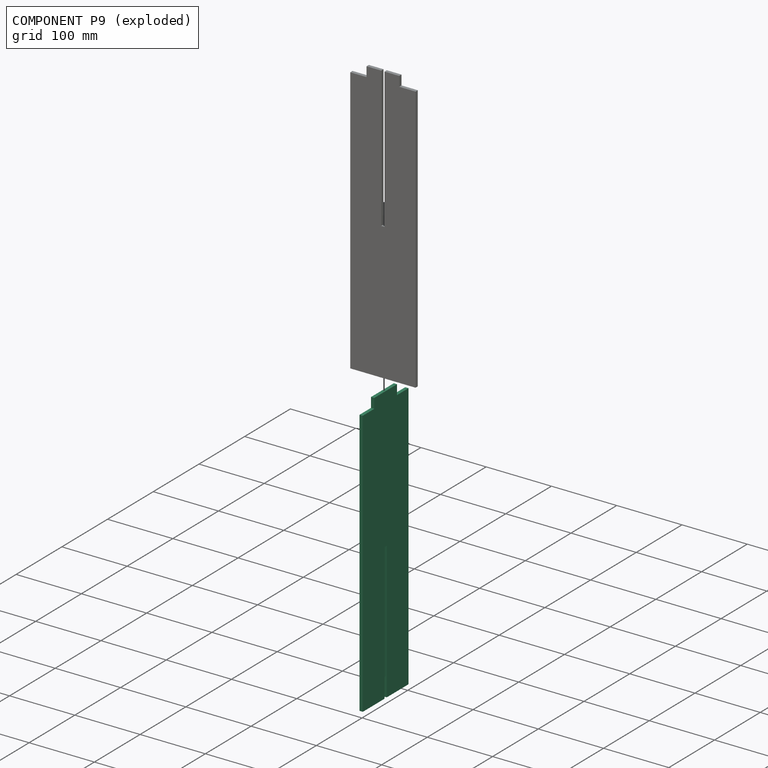
[diagram: component P9 — exploded]
COMPONENT P9 — recipe-attached (CADFS 00645660, mesh-verified: the recipe's output STEP matches this component's geometry to below the mesh-comparison resolution (tessellation chordal tolerance ~0.655 mm)).
Held by: FASTENED mate "Fastened 1" to P1; FASTENED mate "Fastened 1" to P1.
Construction recipe (FeatureScript — the CAD program that rebuilds this solid; sketch coordinates are in the units given by the * unit suffixes, e.g. mm):

FeatureScript 1511;
import(path : "onshape/std/geometry.fs", version : "1511.0");
import(path : "onshape/std/common.fs", version : "1511.0");
const mm = millimeter;
const VERTEX = EntityType.VERTEX;
const EDGE = EntityType.EDGE;
const FACE = EntityType.FACE;
const BODY = EntityType.BODY;
function v(x, y){return vector(x, y);}
function OD(order){return orderDisambiguation(order);}
function OSD(set){return originalSetDisambiguation(set);}
function TD(topology){return topologyDisambiguation(topology);}
function TDD(query){return trueDependencyDisambiguation(query);}
function sQuery(a, b, c) {return sketchEntityQuery(a, b, c);}

annotation { "Feature Type Name" : "Feature", "Feature Type Description" : "" }
export const myFeature = defineFeature(function(context is Context, id is Id, definition is map)
    precondition{}
    {
        {
            var Q0;
            Q0=qCreatedBy(makeId("Right.planeOp"),FACE);
            var sketch = newSketch(context, id + "F0", { "sketchPlane" : qUnion([Q0])});
            skLineSegment(sketch, "E0.top", {"start": v(0, 410) * mm, "end": v(-25, 410) * mm});
            skLineSegment(sketch, "E0.left", {"start": v(0, 0) * mm, "end": v(0, 410) * mm});
            skLineSegment(sketch, "E0.right", {"start": v(-100, 0) * mm, "end": v(-100, 410) * mm});
            skLineSegment(sketch, "E1.top", {"start": v(-75, 425) * mm, "end": v(-25, 425) * mm});
            skLineSegment(sketch, "E1.left", {"start": v(-75, 410) * mm, "end": v(-75, 425) * mm});
            skLineSegment(sketch, "E1.right", {"start": v(-25, 410) * mm, "end": v(-25, 425) * mm});
            skLineSegment(sketch, "E2", {"start": v(-100, 0) * mm, "end": v(-52.5, 0) * mm});
            skLineSegment(sketch, "E3.trimOffspring", {"start": v(-75, 410) * mm, "end": v(-100, 410) * mm});
            skPoint(sketch, "E4.oppositeSnap0", {"position": v(-50, 0) * mm});
            skLineSegment(sketch, "E4.bottom", {"start": v(-50, 0) * mm, "end": v(-50, 0) * mm});
            skLineSegment(sketch, "E5.top", {"start": v(-52.5, 210) * mm, "end": v(-47.5, 210) * mm});
            skLineSegment(sketch, "E5.left", {"start": v(-52.5, 0) * mm, "end": v(-52.5, 210) * mm});
            skLineSegment(sketch, "E5.right", {"start": v(-47.5, 0) * mm, "end": v(-47.5, 210) * mm});
            skLineSegment(sketch, "E6.trimOffspring", {"start": v(-47.5, 0) * mm, "end": v(0, 0) * mm});
            skSolve(sketch);
        }
        {
            var Q0;
            Q0=makeQuery(id+"F0.imprint","IMPRINT",FACE,{"disambiguationData":[TD([[makeQuery(id+"F0.imprint","IMPRINT",EDGE,{"derivedFrom":sQuery(id+"F0.wireOp",EDGE,"E0.top")}),1.0]])]});
            extrude(context, id + "F1", {"entities" : qUnion([Q0]), "depth" : 5 * mm, "offsetDistance" : 25 * mm});
        }
    });
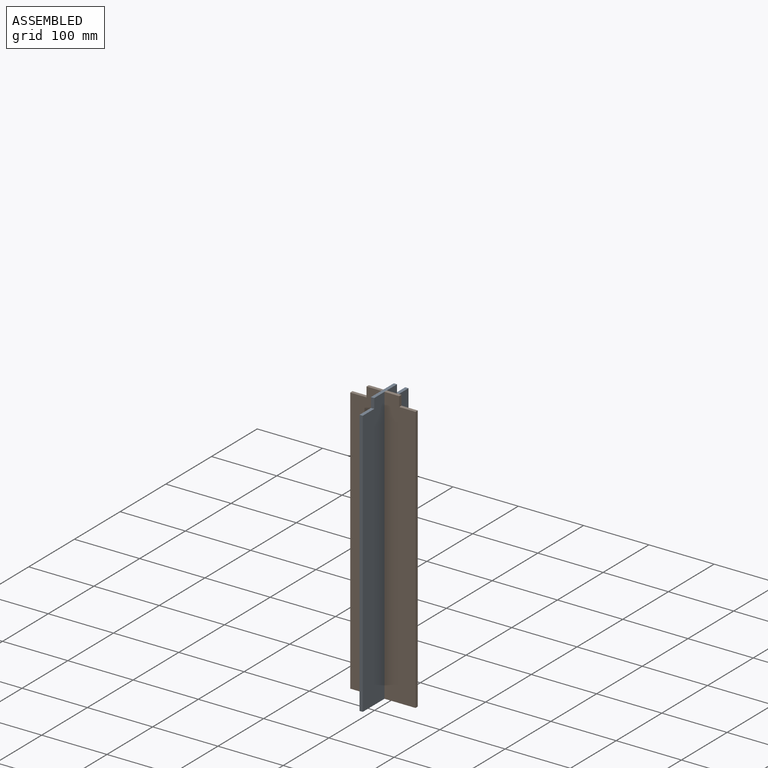
[diagram: subassembly S2 — assembled view]
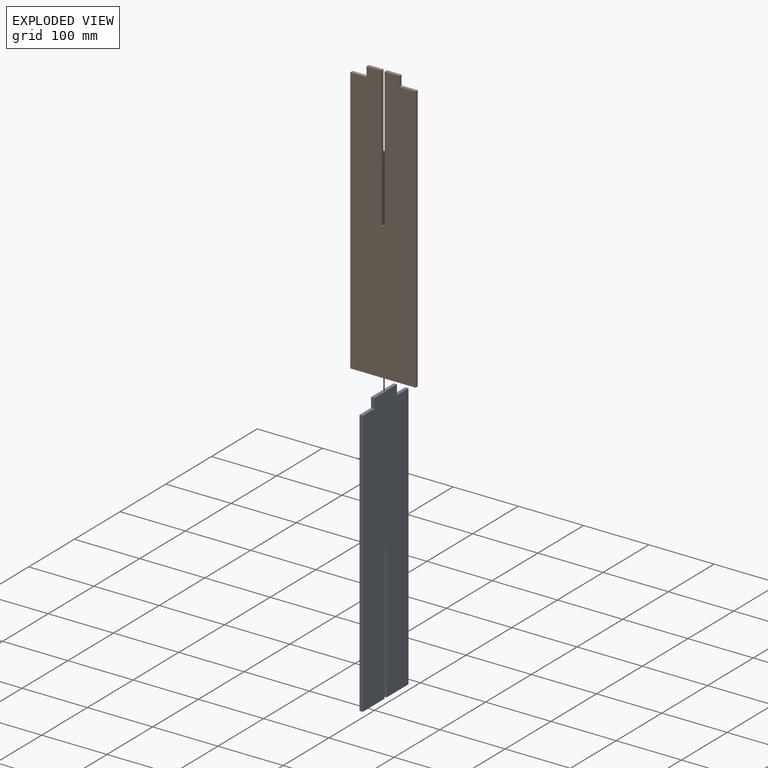
[diagram: subassembly S2 — exploded view]
SUBASSEMBLY S2 TOUR — 2 components, shown here in isolation at its own camera.

INTERNAL MATES
  1. FASTENED "Fastened 1": P4 <-> P2, direction (0.000, 0.000, 1.000) through (-103.69, 25.87, -19.37) mm
  2. FASTENED "Fastened 1": P4 <-> P2, direction (0.000, 0.000, 1.000) through (-103.69, 25.87, -19.37) mm

ASSEMBLY ORDER (within the subassembly)
  1. P2 — the base component [order heuristic]
  2. P4 [order heuristic]
Order-tag legend:
  [order heuristic] — this assembly is geometrically interlocked (no collision-free removal order exists), so components are listed in mate-graph order; insertion feasibility is not verified.
